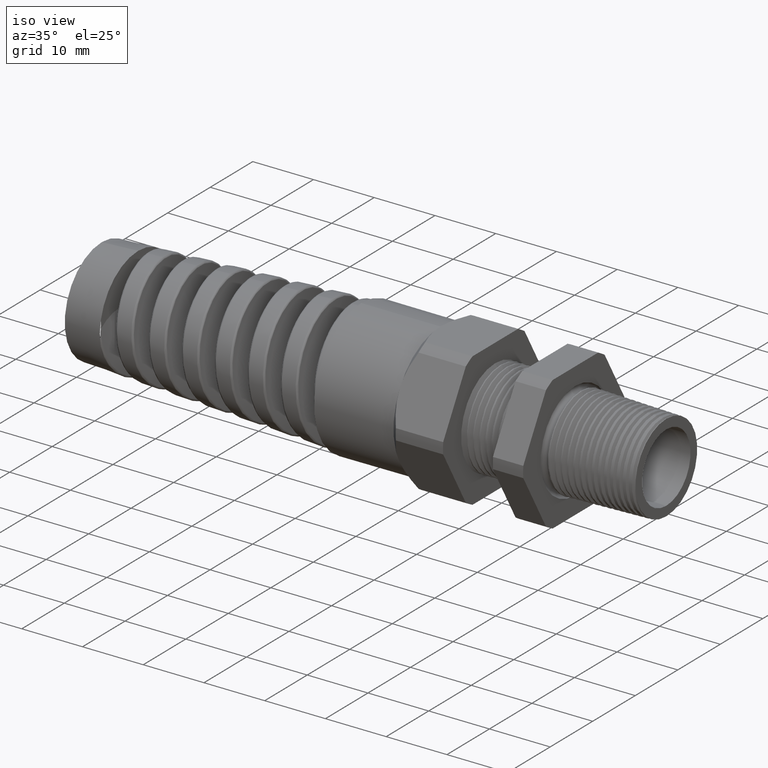
[diagram: clean part render]
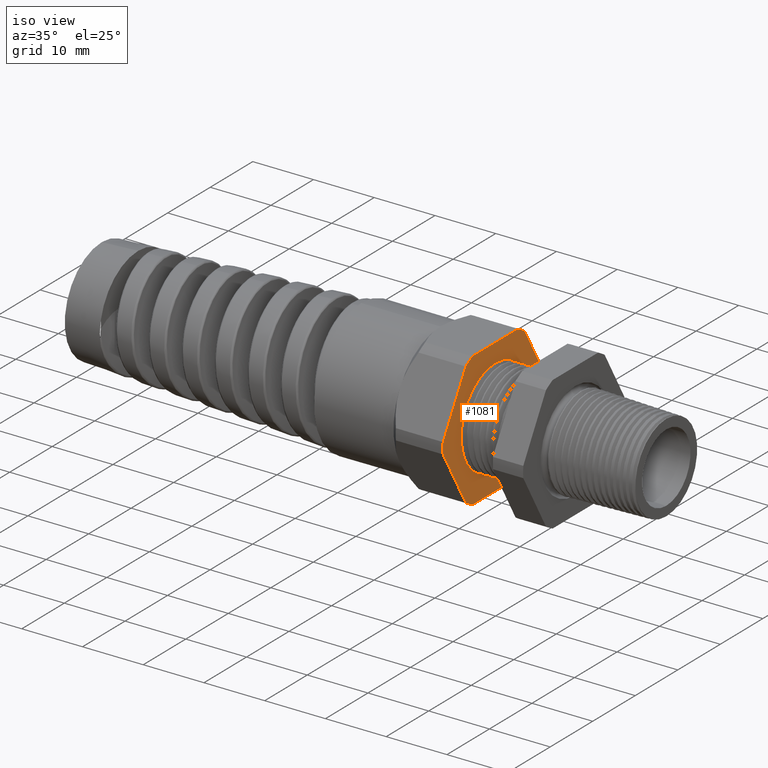
[diagram: same view with one face highlighted and labeled with its STEP entity id]
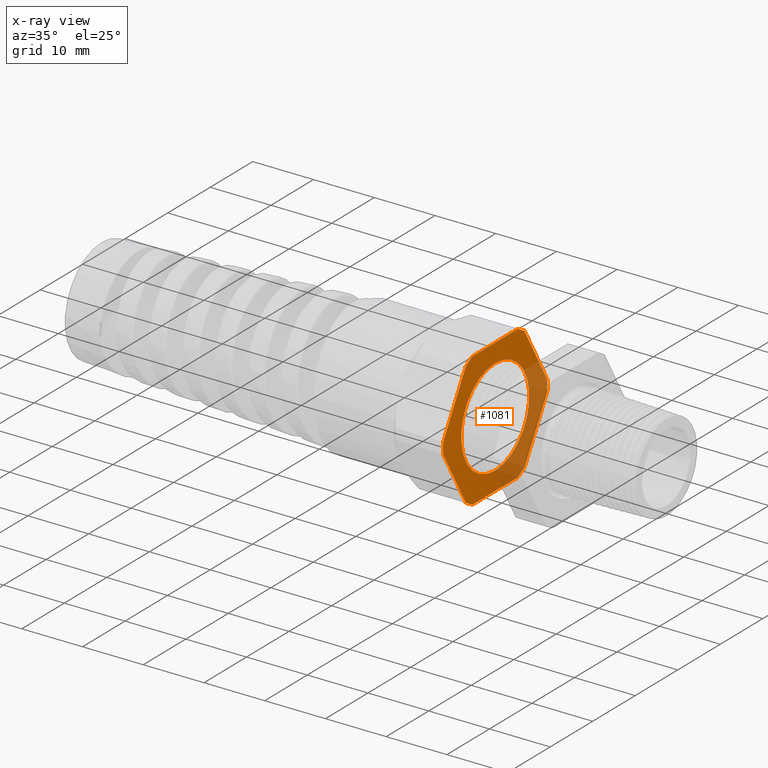
[diagram: x-ray of the same camera — body ghosted, the highlighted face saturated]
A machine part, iso view. The second image highlights one B-rep face of the part: STEP entity #1081.
The next image is the same camera in x-ray: the body ghosted, the highlighted face saturated — about 32% of this face is hidden behind the body in this view.
In plain terms, the highlighted planar face has unit normal (1, 0, -0).
Its self-contained STEP definition (entity closure, byte-faithful):
#166 = LINE ( 'NONE', #176, #4647 ) ;
#176 = CARTESIAN_POINT ( 'NONE',  ( -0.8293700787401573300, -0.2979710506462307500, 0.3538990010960488800 ) ) ;
#803 = VERTEX_POINT ( 'NONE', #4386 ) ;
#805 = EDGE_CURVE ( 'NONE', #820, #803, #4384, .T. ) ;
#813 = VERTEX_POINT ( 'NONE', #4432 ) ;
#820 = VERTEX_POINT ( 'NONE', #4420 ) ;
#822 = EDGE_CURVE ( 'NONE', #813, #820, #4419, .T. ) ;
#853 = VERTEX_POINT ( 'NONE', #4514 ) ;
#855 = EDGE_CURVE ( 'NONE', #867, #853, #4513, .T. ) ;
#867 = VERTEX_POINT ( 'NONE', #4544 ) ;
#869 = EDGE_CURVE ( 'NONE', #803, #867, #4542, .T. ) ;
#881 = VERTEX_POINT ( 'NONE', #4569 ) ;
#883 = EDGE_CURVE ( 'NONE', #897, #881, #4568, .T. ) ;
#897 = VERTEX_POINT ( 'NONE', #4590 ) ;
#900 = VERTEX_POINT ( 'NONE', #4589 ) ;
#902 = EDGE_CURVE ( 'NONE', #916, #900, #166, .T. ) ;
#911 = VERTEX_POINT ( 'NONE', #4629 ) ;
#913 = EDGE_CURVE ( 'NONE', #900, #911, #4627, .T. ) ;
#916 = VERTEX_POINT ( 'NONE', #4617 ) ;
#918 = EDGE_CURVE ( 'NONE', #853, #916, #4616, .T. ) ;
#931 = VERTEX_POINT ( 'NONE', #4648 ) ;
#933 = EDGE_CURVE ( 'NONE', #948, #931, #4703, .T. ) ;
#948 = VERTEX_POINT ( 'NONE', #4721 ) ;
#950 = EDGE_CURVE ( 'NONE', #881, #948, #4720, .T. ) ;
#955 = EDGE_CURVE ( 'NONE', #911, #897, #4710, .T. ) ;
#997 = EDGE_CURVE ( 'NONE', #931, #813, #4822, .T. ) ;
#1076 = ORIENTED_EDGE ( 'NONE', *, *, #933, .T. ) ;
#1081 = ADVANCED_FACE ( 'NONE', ( #4972, #4971 ), #4970, .T. ) ;
#1082 = EDGE_LOOP ( 'NONE', ( #1083, #1085 ) ) ;
#1083 = ORIENTED_EDGE ( 'NONE', *, *, #1084, .F. ) ;
#1084 = EDGE_CURVE ( 'NONE', #2069, #2117, #4964, .T. ) ;
#1085 = ORIENTED_EDGE ( 'NONE', *, *, #2144, .F. ) ;
#1086 = EDGE_LOOP ( 'NONE', ( #1087, #1149, #1150, #1151, #1152, #1153, #1154, #1155, #1156, #1157, #1158, #1076 ) ) ;
#1087 = ORIENTED_EDGE ( 'NONE', *, *, #997, .T. ) ;
#1149 = ORIENTED_EDGE ( 'NONE', *, *, #822, .T. ) ;
#1150 = ORIENTED_EDGE ( 'NONE', *, *, #805, .T. ) ;
#1151 = ORIENTED_EDGE ( 'NONE', *, *, #869, .T. ) ;
#1152 = ORIENTED_EDGE ( 'NONE', *, *, #855, .T. ) ;
#1153 = ORIENTED_EDGE ( 'NONE', *, *, #918, .T. ) ;
#1154 = ORIENTED_EDGE ( 'NONE', *, *, #902, .T. ) ;
#1155 = ORIENTED_EDGE ( 'NONE', *, *, #913, .T. ) ;
#1156 = ORIENTED_EDGE ( 'NONE', *, *, #955, .T. ) ;
#1157 = ORIENTED_EDGE ( 'NONE', *, *, #883, .T. ) ;
#1158 = ORIENTED_EDGE ( 'NONE', *, *, #950, .T. ) ;
#2069 = VERTEX_POINT ( 'NONE', #12530 ) ;
#2117 = VERTEX_POINT ( 'NONE', #12610 ) ;
#2144 = EDGE_CURVE ( 'NONE', #2117, #2069, #12732, .T. ) ;
#4381 = DIRECTION ( 'NONE',  ( 0.0000000000000000000, -0.4999999999999998300, 0.8660254037844386000 ) ) ;
#4382 = VECTOR ( 'NONE', #4381, 39.37007874015748900 ) ;
#4383 = CARTESIAN_POINT ( 'NONE',  ( -0.8293700787401573300, 0.4554710506462308400, 0.08110099890395093500 ) ) ;
#4384 = LINE ( 'NONE', #4383, #4382 ) ;
#4386 = CARTESIAN_POINT ( 'NONE',  ( -0.8293700787401573300, 0.2719366022533515900, 0.3989919884595459800 ) ) ;
#4415 = DIRECTION ( 'NONE',  ( 0.0000000000000000000, 0.0000000000000000000, -1.000000000000000000 ) ) ;
#4416 = DIRECTION ( 'NONE',  ( 1.000000000000000000, -0.0000000000000000000, -0.0000000000000000000 ) ) ;
#4417 = CARTESIAN_POINT ( 'NONE',  ( -0.8293700787401573300, 0.0000000000000000000, 0.0000000000000000000 ) ) ;
#4418 = AXIS2_PLACEMENT_3D ( 'NONE', #4417, #4416, #4415 ) ;
#4419 = CIRCLE ( 'NONE', #4418, 0.4828500000000001700 ) ;
#4420 = CARTESIAN_POINT ( 'NONE',  ( -0.8293700787401573300, 0.4815054990391102200, 0.03600801154045397300 ) ) ;
#4432 = CARTESIAN_POINT ( 'NONE',  ( -0.8293700787401573300, 0.4815054990391102700, -0.03600801154045400000 ) ) ;
#4510 = DIRECTION ( 'NONE',  ( 0.0000000000000000000, -1.000000000000000000, 0.0000000000000000000 ) ) ;
#4511 = VECTOR ( 'NONE', #4510, 39.37007874015748100 ) ;
#4512 = CARTESIAN_POINT ( 'NONE',  ( -0.8293700787401573300, 0.3150000000000000000, 0.4349999999999998900 ) ) ;
#4513 = LINE ( 'NONE', #4512, #4511 ) ;
#4514 = CARTESIAN_POINT ( 'NONE',  ( -0.8293700787401573300, -0.2095688967857593000, 0.4349999999999997800 ) ) ;
#4538 = DIRECTION ( 'NONE',  ( 0.0000000000000000000, 0.0000000000000000000, -1.000000000000000000 ) ) ;
#4539 = DIRECTION ( 'NONE',  ( 1.000000000000000000, -0.0000000000000000000, -0.0000000000000000000 ) ) ;
#4540 = CARTESIAN_POINT ( 'NONE',  ( -0.8293700787401573300, 0.0000000000000000000, 0.0000000000000000000 ) ) ;
#4541 = AXIS2_PLACEMENT_3D ( 'NONE', #4540, #4539, #4538 ) ;
#4542 = CIRCLE ( 'NONE', #4541, 0.4828500000000000000 ) ;
#4544 = CARTESIAN_POINT ( 'NONE',  ( -0.8293700787401573300, 0.2095688967857591300, 0.4349999999999998900 ) ) ;
#4564 = DIRECTION ( 'NONE',  ( 0.0000000000000000000, 0.0000000000000000000, -1.000000000000000000 ) ) ;
#4565 = DIRECTION ( 'NONE',  ( 1.000000000000000000, -0.0000000000000000000, -0.0000000000000000000 ) ) ;
#4566 = CARTESIAN_POINT ( 'NONE',  ( -0.8293700787401573300, 0.0000000000000000000, 0.0000000000000000000 ) ) ;
#4567 = AXIS2_PLACEMENT_3D ( 'NONE', #4566, #4565, #4564 ) ;
#4568 = CIRCLE ( 'NONE', #4567, 0.4828500000000000600 ) ;
#4569 = CARTESIAN_POINT ( 'NONE',  ( -0.8293700787401573300, -0.2095688967857587700, -0.4350000000000000500 ) ) ;
#4589 = CARTESIAN_POINT ( 'NONE',  ( -0.8293700787401573300, -0.4815054990391102700, 0.03600801154045355600 ) ) ;
#4590 = CARTESIAN_POINT ( 'NONE',  ( -0.8293700787401573300, -0.2719366022533510900, -0.3989919884595464200 ) ) ;
#4616 = CIRCLE ( 'NONE', #4678, 0.4828500000000000600 ) ;
#4617 = CARTESIAN_POINT ( 'NONE',  ( -0.8293700787401573300, -0.2719366022533513700, 0.3989919884595462500 ) ) ;
#4623 = DIRECTION ( 'NONE',  ( 0.0000000000000000000, 0.0000000000000000000, -1.000000000000000000 ) ) ;
#4624 = DIRECTION ( 'NONE',  ( 1.000000000000000000, -0.0000000000000000000, -0.0000000000000000000 ) ) ;
#4625 = CARTESIAN_POINT ( 'NONE',  ( -0.8293700787401573300, 0.0000000000000000000, 0.0000000000000000000 ) ) ;
#4626 = AXIS2_PLACEMENT_3D ( 'NONE', #4625, #4624, #4623 ) ;
#4627 = CIRCLE ( 'NONE', #4626, 0.4828500000000000600 ) ;
#4629 = CARTESIAN_POINT ( 'NONE',  ( -0.8293700787401573300, -0.4815054990391102700, -0.03600801154045379900 ) ) ;
#4646 = DIRECTION ( 'NONE',  ( -0.0000000000000000000, -0.4999999999999998300, -0.8660254037844388200 ) ) ;
#4647 = VECTOR ( 'NONE', #4646, 39.37007874015748100 ) ;
#4648 = CARTESIAN_POINT ( 'NONE',  ( -0.8293700787401573300, 0.2719366022533517000, -0.3989919884595459800 ) ) ;
#4675 = DIRECTION ( 'NONE',  ( 0.0000000000000000000, 0.0000000000000000000, -1.000000000000000000 ) ) ;
#4676 = DIRECTION ( 'NONE',  ( 1.000000000000000000, -0.0000000000000000000, -0.0000000000000000000 ) ) ;
#4677 = CARTESIAN_POINT ( 'NONE',  ( -0.8293700787401573300, 0.0000000000000000000, 0.0000000000000000000 ) ) ;
#4678 = AXIS2_PLACEMENT_3D ( 'NONE', #4677, #4676, #4675 ) ;
#4699 = DIRECTION ( 'NONE',  ( 0.0000000000000000000, 0.0000000000000000000, -1.000000000000000000 ) ) ;
#4700 = DIRECTION ( 'NONE',  ( 1.000000000000000000, -0.0000000000000000000, -0.0000000000000000000 ) ) ;
#4701 = CARTESIAN_POINT ( 'NONE',  ( -0.8293700787401573300, 0.0000000000000000000, 0.0000000000000000000 ) ) ;
#4702 = AXIS2_PLACEMENT_3D ( 'NONE', #4701, #4700, #4699 ) ;
#4703 = CIRCLE ( 'NONE', #4702, 0.4828500000000000600 ) ;
#4707 = DIRECTION ( 'NONE',  ( 0.0000000000000000000, 0.5000000000000001100, -0.8660254037844386000 ) ) ;
#4708 = VECTOR ( 'NONE', #4707, 39.37007874015748100 ) ;
#4709 = CARTESIAN_POINT ( 'NONE',  ( -0.8293700787401573300, -0.2979710506462307500, -0.3538990010960491600 ) ) ;
#4710 = LINE ( 'NONE', #4709, #4708 ) ;
#4717 = DIRECTION ( 'NONE',  ( 0.0000000000000000000, 1.000000000000000000, 0.0000000000000000000 ) ) ;
#4718 = VECTOR ( 'NONE', #4717, 39.37007874015748100 ) ;
#4719 = CARTESIAN_POINT ( 'NONE',  ( -0.8293700787401573300, 0.3150000000000000000, -0.4350000000000000500 ) ) ;
#4720 = LINE ( 'NONE', #4719, #4718 ) ;
#4721 = CARTESIAN_POINT ( 'NONE',  ( -0.8293700787401573300, 0.2095688967857588500, -0.4350000000000000000 ) ) ;
#4812 = DIRECTION ( 'NONE',  ( 0.0000000000000000000, 0.4999999999999998300, 0.8660254037844386000 ) ) ;
#4813 = VECTOR ( 'NONE', #4812, 39.37007874015748900 ) ;
#4821 = CARTESIAN_POINT ( 'NONE',  ( -0.8293700787401573300, 0.4554710506462308900, -0.08110099890395097700 ) ) ;
#4822 = LINE ( 'NONE', #4821, #4813 ) ;
#4961 = DIRECTION ( 'NONE',  ( 0.0000000000000000000, 0.0000000000000000000, -1.000000000000000000 ) ) ;
#4962 = DIRECTION ( 'NONE',  ( 1.000000000000000000, -0.0000000000000000000, -0.0000000000000000000 ) ) ;
#4963 = AXIS2_PLACEMENT_3D ( 'NONE', #4968, #4962, #4961 ) ;
#4964 = CIRCLE ( 'NONE', #4963, 0.3149999999999998900 ) ;
#4965 = DIRECTION ( 'NONE',  ( -0.0000000000000000000, 0.0000000000000000000, -1.000000000000000000 ) ) ;
#4966 = DIRECTION ( 'NONE',  ( 1.000000000000000000, 0.0000000000000000000, -0.0000000000000000000 ) ) ;
#4967 = AXIS2_PLACEMENT_3D ( 'NONE', #4969, #4966, #4965 ) ;
#4968 = CARTESIAN_POINT ( 'NONE',  ( -0.8293700787401573300, 0.0000000000000000000, 0.0000000000000000000 ) ) ;
#4969 = CARTESIAN_POINT ( 'NONE',  ( -0.8293700787401573300, 0.3150000000000000000, 0.0000000000000000000 ) ) ;
#4970 = PLANE ( 'NONE',  #4967 ) ;
#4971 = FACE_OUTER_BOUND ( 'NONE', #1086, .T. ) ;
#4972 = FACE_BOUND ( 'NONE', #1082, .T. ) ;
#12530 = CARTESIAN_POINT ( 'NONE',  ( -0.8293700787401573300, 0.0000000000000000000, 0.3149999999999998900 ) ) ;
#12610 = CARTESIAN_POINT ( 'NONE',  ( -0.8293700787401573300, 3.857637417314162100E-017, -0.3149999999999998900 ) ) ;
#12728 = DIRECTION ( 'NONE',  ( 0.0000000000000000000, 0.0000000000000000000, -1.000000000000000000 ) ) ;
#12729 = DIRECTION ( 'NONE',  ( 1.000000000000000000, -0.0000000000000000000, -0.0000000000000000000 ) ) ;
#12730 = CARTESIAN_POINT ( 'NONE',  ( -0.8293700787401573300, 0.0000000000000000000, 0.0000000000000000000 ) ) ;
#12731 = AXIS2_PLACEMENT_3D ( 'NONE', #12730, #12729, #12728 ) ;
#12732 = CIRCLE ( 'NONE', #12731, 0.3149999999999998900 ) ;